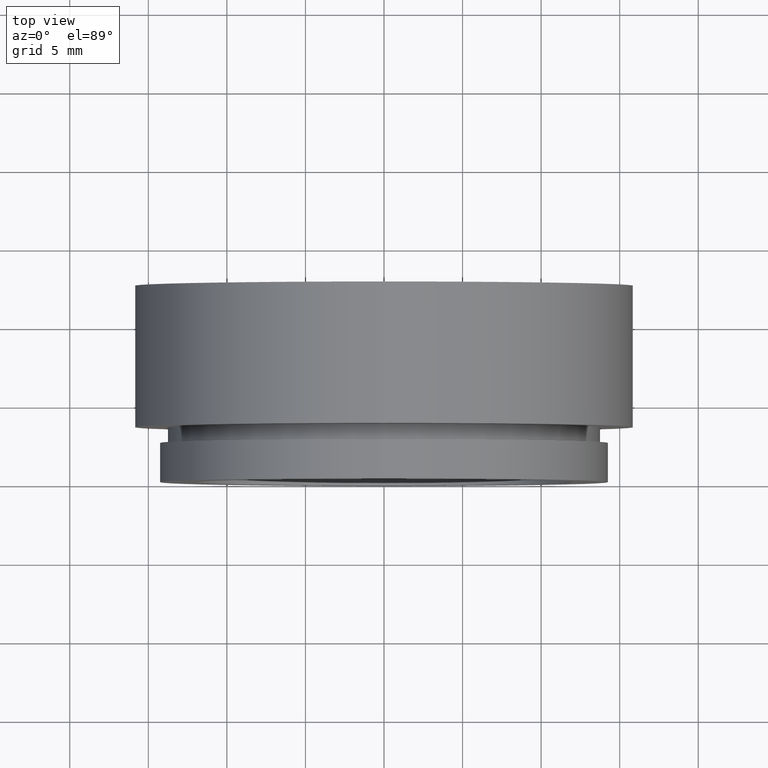
[diagram: clean part render]
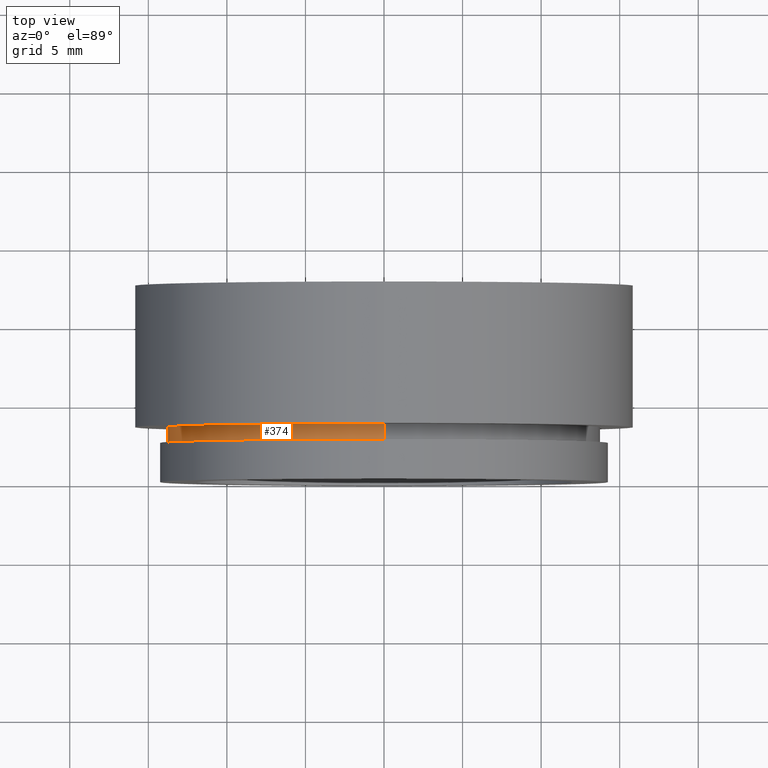
[diagram: same view with one face highlighted and labeled with its STEP entity id]
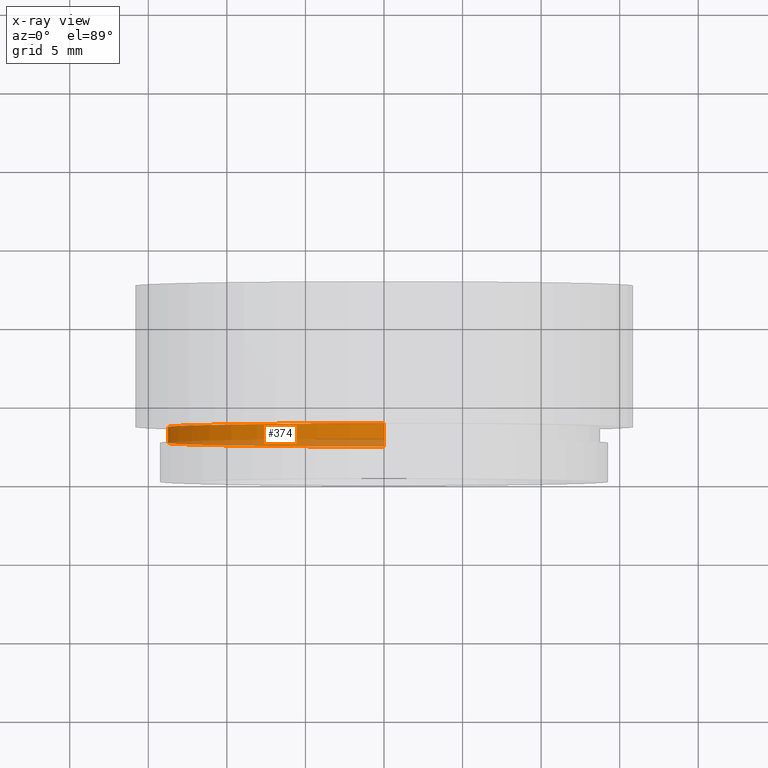
[diagram: x-ray of the same camera — body ghosted, the highlighted face saturated]
A machine part, top view. The second image highlights one B-rep face of the part: STEP entity #374.
The next image is the same camera in x-ray: the body ghosted, the highlighted face saturated — about 27% of this face is hidden behind the body in this view.
In plain terms, the highlighted cylindrical surface (partial cylindrical patch) has radius 13.75 mm, axis along (-0, -1, -0).
Its self-contained STEP definition (entity closure, byte-faithful):
#8 = EDGE_CURVE ( 'NONE', #647, #14, #545, .T. ) ;
#14 = VERTEX_POINT ( 'NONE', #305 ) ;
#19 = CARTESIAN_POINT ( 'NONE',  ( 0.0000000000000000000, 3.500000000000000000, 0.0000000000000000000 ) ) ;
#52 = CARTESIAN_POINT ( 'NONE',  ( 0.0000000000000000000, 0.0000000000000000000, 0.0000000000000000000 ) ) ;
#55 = EDGE_CURVE ( 'NONE', #647, #380, #160, .T. ) ;
#77 = DIRECTION ( 'NONE',  ( -0.0000000000000000000, -1.000000000000000000, -0.0000000000000000000 ) ) ;
#108 = CIRCLE ( 'NONE', #399, 13.75000000000000000 ) ;
#160 = LINE ( 'NONE', #516, #726 ) ;
#178 = CARTESIAN_POINT ( 'NONE',  ( 0.0000000000000000000, 2.500000000000000000, -13.75000000000000000 ) ) ;
#188 = DIRECTION ( 'NONE',  ( 0.0000000000000000000, 0.0000000000000000000, -1.000000000000000000 ) ) ;
#218 = CARTESIAN_POINT ( 'NONE',  ( 0.0000000000000000000, 2.500000000000000000, 0.0000000000000000000 ) ) ;
#246 = EDGE_CURVE ( 'NONE', #380, #494, #108, .T. ) ;
#265 = CYLINDRICAL_SURFACE ( 'NONE', #388, 13.75000000000000000 ) ;
#286 = ORIENTED_EDGE ( 'NONE', *, *, #568, .T. ) ;
#287 = EDGE_LOOP ( 'NONE', ( #530, #342, #286, #686 ) ) ;
#305 = CARTESIAN_POINT ( 'NONE',  ( 0.0000000000000000000, 3.500000000000000000, -13.75000000000000000 ) ) ;
#331 = DIRECTION ( 'NONE',  ( 0.0000000000000000000, 0.0000000000000000000, -1.000000000000000000 ) ) ;
#342 = ORIENTED_EDGE ( 'NONE', *, *, #8, .T. ) ;
#347 = DIRECTION ( 'NONE',  ( -0.0000000000000000000, -1.000000000000000000, -0.0000000000000000000 ) ) ;
#352 = DIRECTION ( 'NONE',  ( -0.0000000000000000000, -1.000000000000000000, -0.0000000000000000000 ) ) ;
#374 = ADVANCED_FACE ( 'NONE', ( #423 ), #265, .T. ) ;
#380 = VERTEX_POINT ( 'NONE', #615 ) ;
#385 = DIRECTION ( 'NONE',  ( -0.0000000000000000000, -1.000000000000000000, -0.0000000000000000000 ) ) ;
#388 = AXIS2_PLACEMENT_3D ( 'NONE', #52, #385, #439 ) ;
#399 = AXIS2_PLACEMENT_3D ( 'NONE', #218, #504, #331 ) ;
#423 = FACE_OUTER_BOUND ( 'NONE', #287, .T. ) ;
#439 = DIRECTION ( 'NONE',  ( 0.0000000000000000000, 0.0000000000000000000, -1.000000000000000000 ) ) ;
#459 = CARTESIAN_POINT ( 'NONE',  ( 1.683889348827610700E-015, 3.500000000000000000, 13.75000000000000000 ) ) ;
#494 = VERTEX_POINT ( 'NONE', #178 ) ;
#504 = DIRECTION ( 'NONE',  ( -0.0000000000000000000, -1.000000000000000000, -0.0000000000000000000 ) ) ;
#507 = VECTOR ( 'NONE', #77, 1000.000000000000000 ) ;
#516 = CARTESIAN_POINT ( 'NONE',  ( 1.683889348827610700E-015, 0.0000000000000000000, 13.75000000000000000 ) ) ;
#530 = ORIENTED_EDGE ( 'NONE', *, *, #55, .F. ) ;
#534 = AXIS2_PLACEMENT_3D ( 'NONE', #19, #347, #188 ) ;
#545 = CIRCLE ( 'NONE', #534, 13.75000000000000000 ) ;
#568 = EDGE_CURVE ( 'NONE', #14, #494, #632, .T. ) ;
#615 = CARTESIAN_POINT ( 'NONE',  ( 1.683889348827610700E-015, 2.500000000000000000, 13.75000000000000000 ) ) ;
#632 = LINE ( 'NONE', #634, #507 ) ;
#634 = CARTESIAN_POINT ( 'NONE',  ( 0.0000000000000000000, 0.0000000000000000000, -13.75000000000000000 ) ) ;
#647 = VERTEX_POINT ( 'NONE', #459 ) ;
#686 = ORIENTED_EDGE ( 'NONE', *, *, #246, .F. ) ;
#726 = VECTOR ( 'NONE', #352, 1000.000000000000000 ) ;